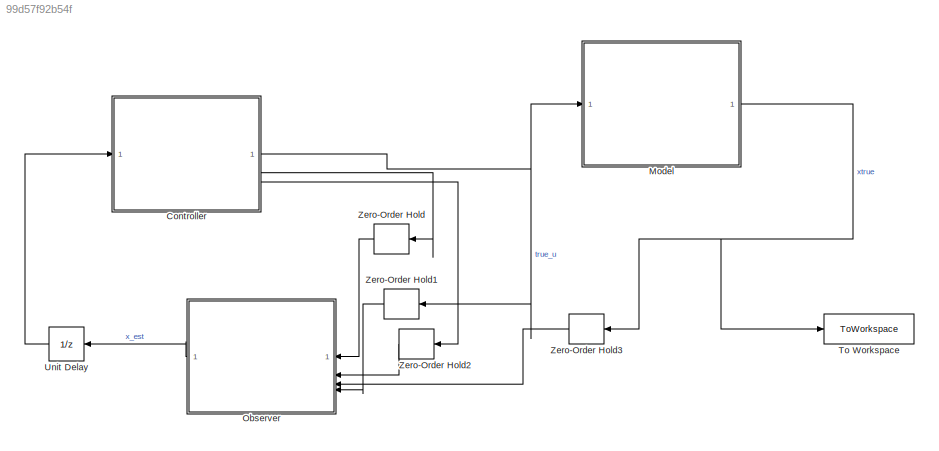
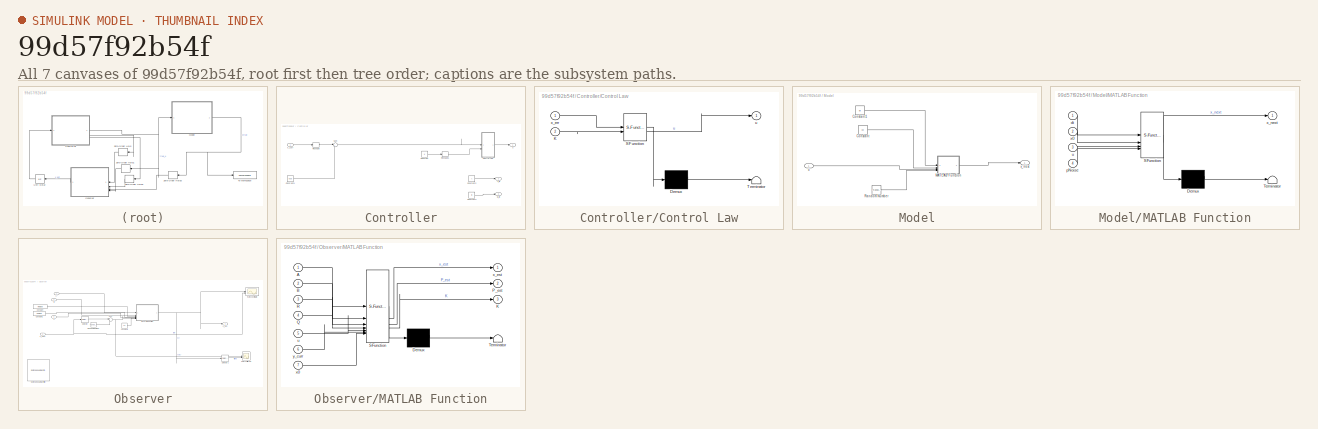
[diagram: thumbnail index - all 7 canvases of the model, root first then tree order]
MODEL slx_99d57f92b54f
KIND model
CONFIG AbsTol = auto
CONFIG EnableMultiTasking = off
CONFIG FixedStep = dt
CONFIG InitFcn = downrighttest
CONFIG MaxStep = auto
CONFIG MinStep = auto
CONFIG RelTol = 1e-3
CONFIG SampleTimeConstraint = Unconstrained
CONFIG SolverName = FixedStepAuto
CONFIG StartTime = 0.0
CONFIG StopTime = 10.0
BLOCK [SubSystem] Controller
BLOCK [Outport] Controller/A_lin
  Port = 2
BLOCK [Outport] Controller/B_lin
  Port = 3
BLOCK [Constant] Controller/Constant
  Value = K
BLOCK [Constant] Controller/Constant1
  Value = eqb
BLOCK [Constant] Controller/Constant2
  Value = A
BLOCK [Constant] Controller/Constant3
  Value = B
BLOCK [SubSystem] Controller/Control Law
  ErrorFcn = Stateflow.Translate.translate
  PermitHierarchicalResolution = ExplicitOnly
  SFBlockType = MATLAB Function
  TreatAsAtomicUnit = on
BLOCK [Demux] Controller/Control Law/ Demux 
  Outputs = 1
BLOCK [S-Function] Controller/Control Law/ SFunction 
  EnableBusSupport = on
  FunctionName = sf_sfun
  PortCounts = [2 2]
  SFcnIsStateOwnerBlock = off
  SFunctionDeploymentMode = off
  Tag = Stateflow S-Function 4
BLOCK [Terminator] Controller/Control Law/ Terminator 
BLOCK [Inport] Controller/Control Law/K
  Port = 2
BLOCK [Outport] Controller/Control Law/u
BLOCK [Inport] Controller/Control Law/x_err
BLOCK [Reshape] Controller/Reshape
  OutputDimensionality = Customize
  OutputDimensions = [4,1]
BLOCK [Reshape] Controller/Reshape1
  OutputDimensionality = Customize
  OutputDimensions = [1,4]
BLOCK [Sum] Controller/Sum
  Inputs = |+-
BLOCK [Outport] Controller/u
BLOCK [Inport] Controller/x_curr
BLOCK [SubSystem] Model
BLOCK [Constant] Model/Constant
  Value = x0
BLOCK [Constant] Model/Constant1
  Value = dt
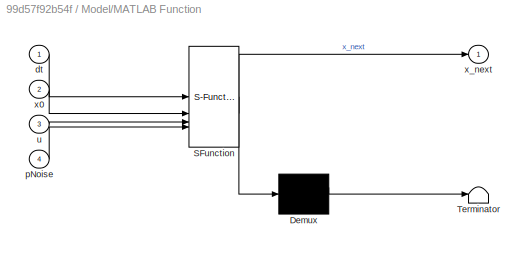
BLOCK [SubSystem] Model/MATLAB Function
  ErrorFcn = Stateflow.Translate.translate
  PermitHierarchicalResolution = ExplicitOnly
  SFBlockType = MATLAB Function
  TreatAsAtomicUnit = on
BLOCK [Demux] Model/MATLAB Function/ Demux 
  Outputs = 1
BLOCK [S-Function] Model/MATLAB Function/ SFunction 
  EnableBusSupport = on
  FunctionName = sf_sfun
  Parameters = p
  PortCounts = [4 2]
  SFcnIsStateOwnerBlock = off
  SFunctionDeploymentMode = off
  Tag = Stateflow S-Function 1
BLOCK [Terminator] Model/MATLAB Function/ Terminator 
BLOCK [Inport] Model/MATLAB Function/dt
BLOCK [Inport] Model/MATLAB Function/pNoise
  Port = 4
BLOCK [Inport] Model/MATLAB Function/u
  Port = 3
BLOCK [Inport] Model/MATLAB Function/x0
  Port = 2
BLOCK [Outport] Model/MATLAB Function/x_next
BLOCK [RandomNumber] Model/Random Number
  SampleTime = dt
  Variance = pvar
BLOCK [Inport] Model/u
BLOCK [Outport] Model/x_next
BLOCK [SubSystem] Observer
  NameLocation = top
BLOCK [Inport] Observer/A
BLOCK [Inport] Observer/B
  Port = 2
BLOCK [Constant] Observer/Constant
  Value = mNoise
BLOCK [Constant] Observer/Constant1
  Value = pNoise
BLOCK [Constant] Observer/Constant2
  Value = x0
BLOCK [Reference] Observer/Extended Kalman Filter  REF=sharedTrackingLibrary/Extended Kalman Filter
  Commented = on
  SourceBlock = sharedTrackingLibrary/Extended Kalman Filter
  SourceType = Extended Kalman Filter
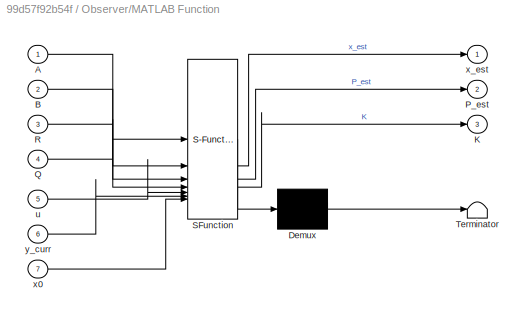
BLOCK [SubSystem] Observer/MATLAB Function
  ErrorFcn = Stateflow.Translate.translate
  PermitHierarchicalResolution = ExplicitOnly
  SFBlockType = MATLAB Function
  TreatAsAtomicUnit = on
BLOCK [Demux] Observer/MATLAB Function/ Demux 
  Outputs = 1
BLOCK [S-Function] Observer/MATLAB Function/ SFunction 
  EnableBusSupport = on
  FunctionName = sf_sfun
  PortCounts = [7 4]
  SFcnIsStateOwnerBlock = off
  SFunctionDeploymentMode = off
  Tag = Stateflow S-Function 5
BLOCK [Terminator] Observer/MATLAB Function/ Terminator 
BLOCK [Inport] Observer/MATLAB Function/A
BLOCK [Inport] Observer/MATLAB Function/B
  Port = 2
BLOCK [Outport] Observer/MATLAB Function/K
  Port = 3
BLOCK [Outport] Observer/MATLAB Function/P_est
  Port = 2
BLOCK [Inport] Observer/MATLAB Function/Q
  Port = 4
BLOCK [Inport] Observer/MATLAB Function/R
  Port = 3
BLOCK [Inport] Observer/MATLAB Function/u
  Port = 5
BLOCK [Inport] Observer/MATLAB Function/x0
  Port = 7
BLOCK [Outport] Observer/MATLAB Function/x_est
BLOCK [Inport] Observer/MATLAB Function/y_curr
  Port = 6
BLOCK [RandomNumber] Observer/Random Number
  SampleTime = dt
  Variance = mvar
BLOCK [Selector] Observer/Selector
  IndexOptions = Index vector (dialog)
  Indices = [1 2]
  InputPortWidth = 4
  OutputSizes = 1
BLOCK [Selector] Observer/Selector1
  IndexOptions = Index vector (dialog)
  Indices = [1 2]
  InputPortWidth = 4
  OutputSizes = 1
BLOCK [Sum] Observer/Sum
  Inputs = |++
BLOCK [Scope] Observer/noisy vs filtered
  Floating = off
  NumInputPorts = 2
  ScopeSpecificationString = Simulink.scopes.TimeScopeBlockCfg('CurrentConfiguration', extmgr.ConfigurationSet(extmgr.Configuration('Core','General UI',true),extmgr.Configuration('Core','Source UI',true),extmgr.Configuration('Sources','WiredSimulink',true,'DataLoggingVariableName','ScopeData2'),extmgr.Configuration('Visuals','Time Domain',true,'SerializedDisplays',{struct('MinYLimReal','-3.99255','MaxYLimReal','3.95319','YLab...<+1838ch>
BLOCK [Scope] Observer/truth vs estimate
  Floating = off
  NumInputPorts = 2
  ScopeSpecificationString = Simulink.scopes.TimeScopeBlockCfg('CurrentConfiguration', extmgr.ConfigurationSet(extmgr.Configuration('Core','General UI',true),extmgr.Configuration('Core','Source UI',true),extmgr.Configuration('Sources','WiredSimulink',true,'DataLoggingVariableName','ScopeData4'),extmgr.Configuration('Visuals','Time Domain',true,'SerializedDisplays',{struct('MinYLimReal','-4.79346','MaxYLimReal','4.35461','YLab...<+1857ch>
BLOCK [Inport] Observer/u
  Port = 4
BLOCK [Outport] Observer/x_est
BLOCK [Inport] Observer/x_next
  Port = 3
BLOCK [ToWorkspace] To Workspace
  FixptAsFi = on
  MaxDataPoints = inf
  SampleTime = -1
  SaveFormat = Timeseries
  VariableName = xcurrout
BLOCK [UnitDelay] Unit Delay
  HasFrameUpgradeWarning = on
  InitialCondition = x0
  SampleTime = dt
BLOCK [ZeroOrderHold] Zero-Order Hold
  NameLocation = top
  SampleTime = dt
BLOCK [ZeroOrderHold] Zero-Order Hold1
  NameLocation = top
  SampleTime = dt
BLOCK [ZeroOrderHold] Zero-Order Hold2
  NameLocation = top
  SampleTime = dt
BLOCK [ZeroOrderHold] Zero-Order Hold3
  NameLocation = top
  SampleTime = dt
LINE Controller/Constant1:1 -> Controller/Sum:2
LINE Controller/Constant2:1 -> Controller/A_lin:1
LINE Controller/Constant3:1 -> Controller/B_lin:1
LINE Controller/Constant:1 -> Controller/Reshape1:1
LINE Controller/Control Law:1 -> Controller/u:1
LINE Controller/Reshape1:1 -> Controller/Control Law:2
LINE Controller/Reshape:1 -> Controller/Sum:1
LINE Controller/Sum:1 -> Controller/Control Law:1
LINE Controller/x_curr:1 -> Controller/Reshape:1
NET Controller:1 -> Model:1, Zero-Order Hold1:1
LINE Controller:2 -> Zero-Order Hold:1
LINE Controller:3 -> Zero-Order Hold2:1
LINE Model/Constant1:1 -> Model/MATLAB Function:1
LINE Model/Constant:1 -> Model/MATLAB Function:2
LINE Model/MATLAB Function:1 -> Model/x_next:1
LINE Model/Random Number:1 -> Model/MATLAB Function:4
LINE Model/u:1 -> Model/MATLAB Function:3
NET Model:1 -> To Workspace:1, Zero-Order Hold3:1
LINE Observer/A:1 -> Observer/MATLAB Function:1
LINE Observer/B:1 -> Observer/MATLAB Function:2
LINE Observer/Constant1:1 -> Observer/MATLAB Function:4
LINE Observer/Constant2:1 -> Observer/MATLAB Function:7
LINE Observer/Constant:1 -> Observer/MATLAB Function:3
NET Observer/MATLAB Function:1 -> Observer/Selector1:1, Observer/truth vs estimate:1, Observer/x_est:1
LINE Observer/Random Number:1 -> Observer/Sum:2
LINE Observer/Selector1:1 -> Observer/noisy vs filtered:2
LINE Observer/Selector:1 -> Observer/Sum:1
NET Observer/Sum:1 -> Observer/MATLAB Function:6, Observer/noisy vs filtered:1
LINE Observer/u:1 -> Observer/MATLAB Function:5
NET Observer/x_next:1 -> Observer/Selector:1, Observer/truth vs estimate:2
LINE Observer:1 -> Unit Delay:1
LINE Unit Delay:1 -> Controller:1
LINE Zero-Order Hold1:1 -> Observer:4
LINE Zero-Order Hold2:1 -> Observer:2
LINE Zero-Order Hold3:1 -> Observer:3
LINE Zero-Order Hold:1 -> Observer:1
note: NET lines group one-source signal fan-out (src -> all destinations, sorted); 1:1 wires keep LINE
CHART Model/MATLAB Function states=1 transitions=1
  STATE_LABEL 'eML_blk_kernel()'
  STATE_LABEL 'SCRIPT:\nfunction x_next = fcn(dt, x0, u, p, pNoise)\npersistent x;\nif isempty(x)\n    x = x0;\nend\n\nx_next = rk4_step(@(xx, uu) dx_pb_lqrreal(0,xx, uu, p), x, u,dt);\nx_next(1) = wrapToPi(x_next(1));\nx_next(2) = wrapToPi(x_next(2));\n\nx_next = x_next + pNoise;\nx = x_next;\nend\n'
CHART Controller/Control Law states=1 transitions=1
  STATE_LABEL 'eML_blk_kernel()'
  STATE_LABEL 'SCRIPT:\nfunction u = fcn(x_err,K)\nx_err(1) = wrapToPi(x_err(1));\nx_err(2) = wrapToPi(x_err(2));\n\nK_max = 50; \nK = max(-K_max, min(K,K_max));\nu = 0 - K * x_err;\nu_max = 10;\nu = max(-u_max, min(u,u_max));\n'
CHART Observer/MATLAB Function states=1 transitions=1
  STATE_LABEL 'eML_blk_kernel()'
  STATE_LABEL "SCRIPT:\nfunction [x_est, P_est, K] = kalman_filter(A,B,R, Q, u, y_curr, x0)\n\npersistent x;\nif isempty(x)\n    x = x0;\nend\npersistent P;\nif isempty(P)\n    P = eye(4)*1e-3;\nend\n\nC = [1 0 0 0;\n    0 1 0 0];\n\nx_eq = [-pi/2;0;0;0];\n\nx_pred = A*(x-x_eq) + x_eq + B*u;\nP_pred = A*P*A' + Q;\n\nK = (P_pred * C') * (C*P_pred*C' + R)^-1;\nx_est = x_pred + K*(y_curr - C*x_pred);\n%P_est = (eye(4) - K*C)*P_pred;\nP_e...<+78ch>"
CHART  states=0 transitions=0
CHART  states=0 transitions=0
CHART  states=0 transitions=0
